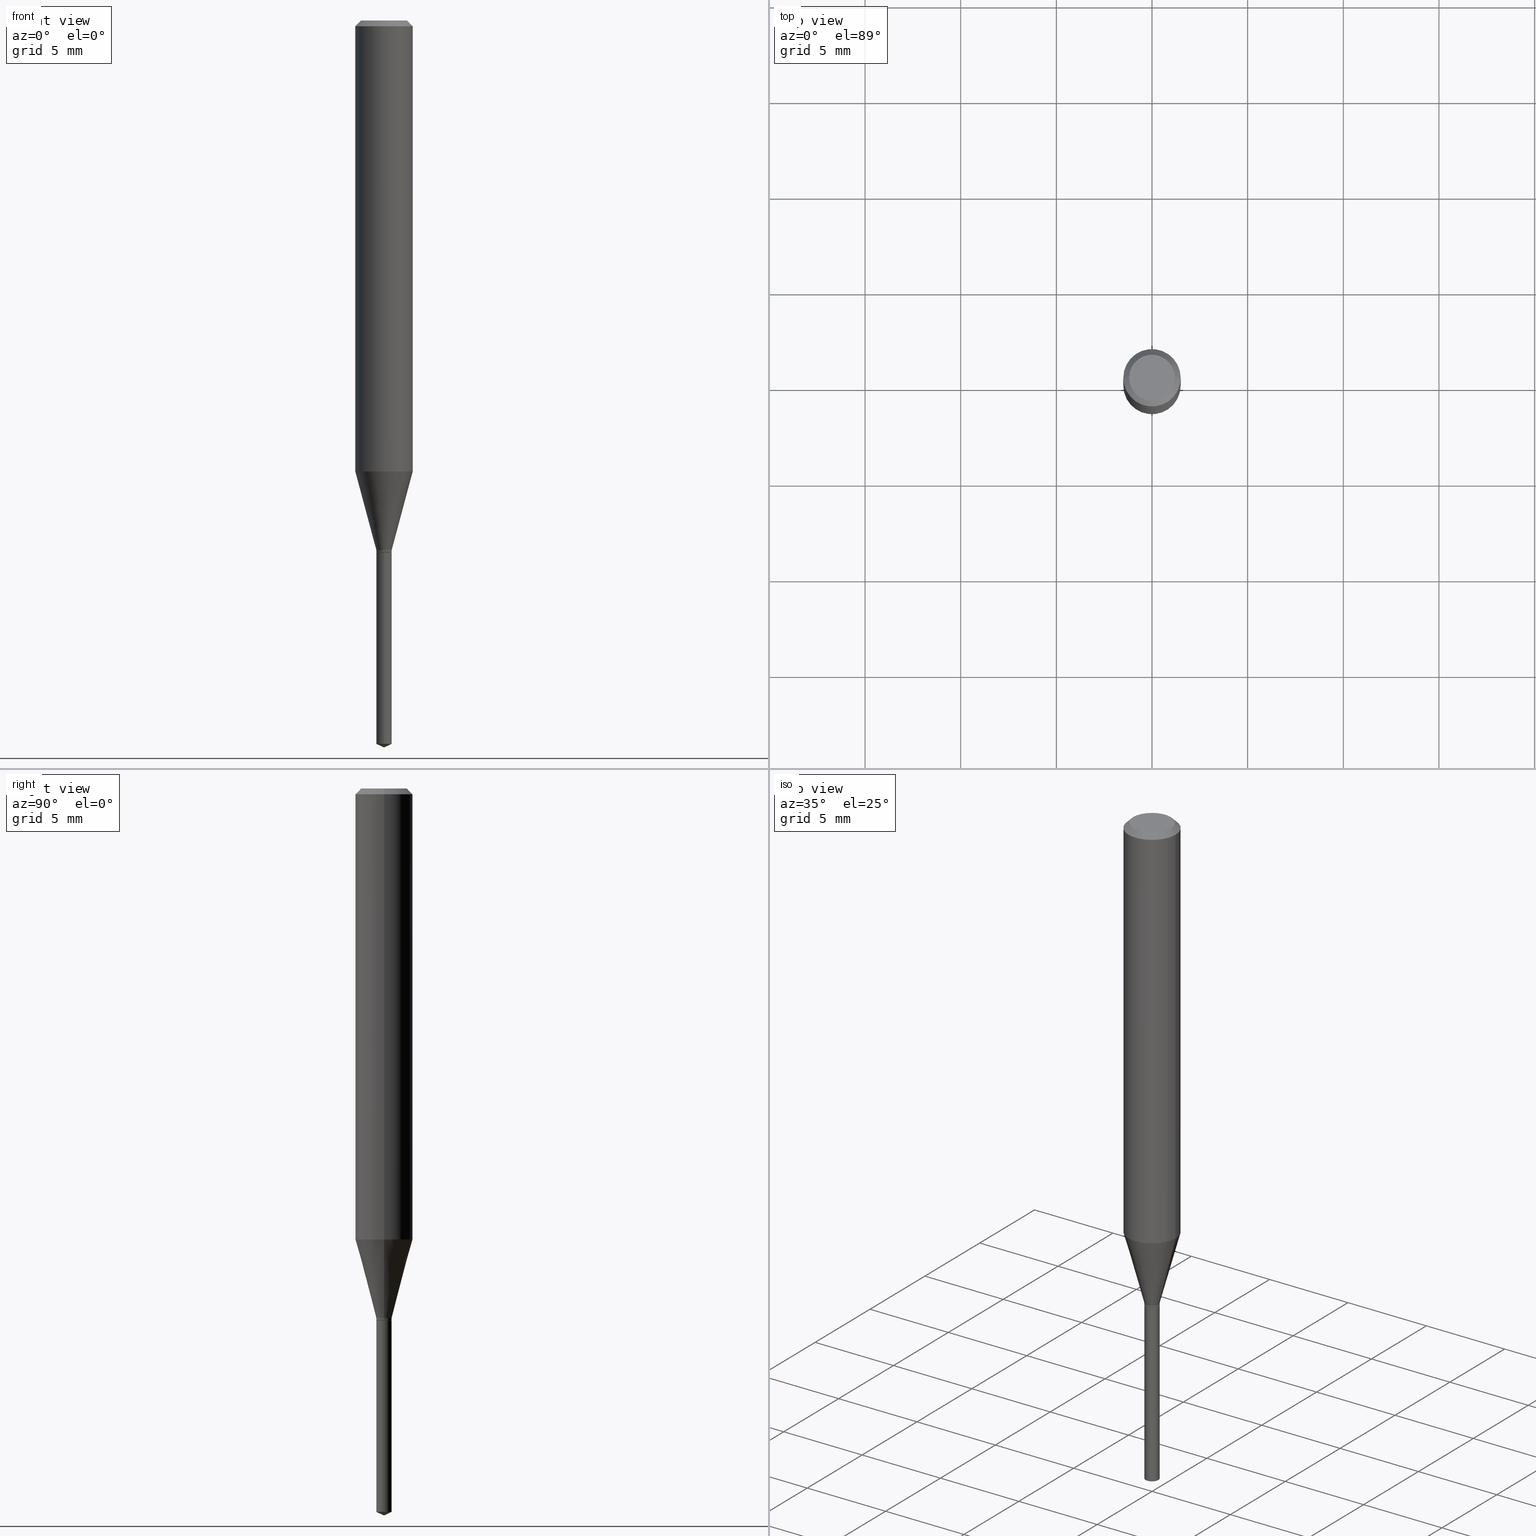
[diagram: canonical four-view strip — front | top / right | iso, engineering-drawing reading convention]
A machine part, canonical four-view strip (front | top / right | iso — engineering-drawing reading convention). The complete STEP part file that produces these views, byte-faithful:
ISO-10303-21;
HEADER;
FILE_DESCRIPTION (( 'STEP AP203' ),
    '1' );
FILE_NAME ('07456.STEP',
    '2024-04-23T21:38:40',
    ( '' ),
    ( '' ),
    'SwSTEP 2.0',
    'SolidWorks 2023',
    '' );
FILE_SCHEMA (( 'CONFIG_CONTROL_DESIGN' ));
ENDSEC;

DATA;
#1 = CARTESIAN_POINT ( 'NONE',  ( 0.05904999999999999832, -4.463468013801466955E-16, -0.01181000000000007044 ) ) ;
#2 = VECTOR ( 'NONE', #227, 39.37007874015747433 ) ;
#3 = LOCAL_TIME ( 17, 38, 40.00000000000000000, #288 ) ;
#4 = EDGE_CURVE ( 'NONE', #140, #334, #54, .T. ) ;
#5 = ORIENTED_EDGE ( 'NONE', *, *, #357, .T. ) ;
#6 = CARTESIAN_POINT ( 'NONE',  ( 2.665071904980561815E-29, -3.805016363071259851E-15, -1.089799999999999880 ) ) ;
#7 = DIRECTION ( 'NONE',  ( 1.000000000000000000, -6.982962677686266711E-15, 4.876176775795935793E-29 ) ) ;
#8 = LINE ( 'NONE', #13, #365 ) ;
#9 = LINE ( 'NONE', #158, #474 ) ;
#10 = PRODUCT_RELATED_PRODUCT_CATEGORY ( 'detail', '', ( #29 ) ) ;
#11 = FACE_OUTER_BOUND ( 'NONE', #443, .T. ) ;
#12 = AXIS2_PLACEMENT_3D ( 'NONE', #336, #126, #454 ) ;
#13 = CARTESIAN_POINT ( 'NONE',  ( -0.05904999999999999832, 3.711095515056362547E-16, -0.01181000000000007044 ) ) ;
#14 = ORIENTED_EDGE ( 'NONE', *, *, #57, .T. ) ;
#15 = DIRECTION ( 'NONE',  ( -6.982962677686265922E-15, -1.000000000000000000, 0.000000000000000000 ) ) ;
#16 = DIRECTION ( 'NONE',  ( -2.445468806185136597E-29, 3.491481338843145583E-15, 1.000000000000000000 ) ) ;
#17 = DIRECTION ( 'NONE',  ( 1.000000000000000000, 0.000000000000000000, 0.000000000000000000 ) ) ;
#18 = MECHANICAL_CONTEXT ( 'NONE', #349, 'mechanical' ) ;
#19 = EDGE_CURVE ( 'NONE', #382, #33, #322, .T. ) ;
#20 = CIRCLE ( 'NONE', #189, 0.04724000000000000421 ) ;
#21 = DIRECTION ( 'NONE',  ( -2.445470214571802116E-29, 3.491479321953280158E-15, 1.000000000000000000 ) ) ;
#22 = ORIENTED_EDGE ( 'NONE', *, *, #458, .F. ) ;
#23 = APPROVAL_DATE_TIME ( #60, #378 ) ;
#24 = ORIENTED_EDGE ( 'NONE', *, *, #318, .T. ) ;
#25 =( NAMED_UNIT ( * ) SI_UNIT ( $, .STERADIAN. ) SOLID_ANGLE_UNIT ( ) );
#26 = CC_DESIGN_DATE_AND_TIME_ASSIGNMENT ( #216, #73, ( #67 ) ) ;
#27 = ORIENTED_EDGE ( 'NONE', *, *, #438, .F. ) ;
#28 = AXIS2_PLACEMENT_3D ( 'NONE', #6, #302, #162 ) ;
#29 = PRODUCT ( '07456', '07456', '', ( #18 ) ) ;
#30 = ORIENTED_EDGE ( 'NONE', *, *, #100, .T. ) ;
#31 = DIRECTION ( 'NONE',  ( 6.982962677686265922E-15, 1.000000000000000000, -3.491479321953280158E-15 ) ) ;
#32 = APPROVAL_ROLE ( '' ) ;
#33 = VERTEX_POINT ( 'NONE', #413 ) ;
#34 = LINE ( 'NONE', #471, #119 ) ;
#35 = APPROVAL_STATUS ( 'not_yet_approved' ) ;
#36 = CC_DESIGN_SECURITY_CLASSIFICATION ( #67, ( #475 ) ) ;
#37 = ORIENTED_EDGE ( 'NONE', *, *, #4, .F. ) ;
#38 = ADVANCED_FACE ( 'NONE', ( #237 ), #47, .T. ) ;
#39 = ORIENTED_EDGE ( 'NONE', *, *, #284, .T. ) ;
#40 = DIRECTION ( 'NONE',  ( 2.445468806185136597E-29, -3.491481338843145583E-15, -1.000000000000000000 ) ) ;
#41 = CARTESIAN_POINT ( 'NONE',  ( 0.000000000000000000, 0.000000000000000000, 0.000000000000000000 ) ) ;
#42 = AXIS2_PLACEMENT_3D ( 'NONE', #326, #131, #173 ) ;
#43 = FACE_OUTER_BOUND ( 'NONE', #487, .T. ) ;
#44 = DIRECTION ( 'NONE',  ( 1.000000000000000000, -6.982962677686252511E-15, 0.000000000000000000 ) ) ;
#45 = APPROVAL ( #65, 'UNSPECIFIED' ) ;
#46 = DIRECTION ( 'NONE',  ( -2.445468806185136597E-29, 3.491481338843145583E-15, 1.000000000000000000 ) ) ;
#47 = CYLINDRICAL_SURFACE ( 'NONE', #78, 0.05905000000000005383 ) ;
#48 = DIRECTION ( 'NONE',  ( 0.7071067811864253372, -2.468850131080976739E-15, 0.7071067811866698083 ) ) ;
#49 = ORIENTED_EDGE ( 'NONE', *, *, #345, .T. ) ;
#50 = CARTESIAN_POINT ( 'NONE',  ( 2.888098660104663766E-31, -4.123439461173779647E-17, -0.01181000000000007044 ) ) ;
#51 = DIRECTION ( 'NONE',  ( 1.000000000000000000, -6.982962677686268288E-15, 0.000000000000000000 ) ) ;
#52 = AXIS2_PLACEMENT_3D ( 'NONE', #362, #359, #31 ) ;
#53 = CIRCLE ( 'NONE', #402, 0.04724000000000000421 ) ;
#54 = LINE ( 'NONE', #267, #364 ) ;
#55 =( NAMED_UNIT ( * ) PLANE_ANGLE_UNIT ( ) SI_UNIT ( $, .RADIAN. ) );
#56 = LINE ( 'NONE', #317, #282 ) ;
#57 = EDGE_CURVE ( 'NONE', #461, #122, #423, .T. ) ;
#58 = APPROVAL_ROLE ( '' ) ;
#59 = ADVANCED_FACE ( 'NONE', ( #221 ), #234, .T. ) ;
#60 = DATE_AND_TIME ( #397, #439 ) ;
#61 = DESIGN_CONTEXT ( 'detailed design', #224, 'design' ) ;
#62 = ORIENTED_EDGE ( 'NONE', *, *, #63, .F. ) ;
#63 = EDGE_CURVE ( 'NONE', #122, #139, #372, .T. ) ;
#64 = DIRECTION ( 'NONE',  ( -6.982962677686265922E-15, -1.000000000000000000, 0.000000000000000000 ) ) ;
#65 = APPROVAL_STATUS ( 'not_yet_approved' ) ;
#66 = PERSON_AND_ORGANIZATION_ROLE ( 'design_supplier' ) ;
#67 = SECURITY_CLASSIFICATION ( '', '', #220 ) ;
#68 = PERSON_AND_ORGANIZATION ( #91, #171 ) ;
#69 = EDGE_CURVE ( 'NONE', #445, #70, #9, .T. ) ;
#70 = VERTEX_POINT ( 'NONE', #193 ) ;
#71 = ORIENTED_EDGE ( 'NONE', *, *, #188, .F. ) ;
#72 = AXIS2_PLACEMENT_3D ( 'NONE', #276, #384, #44 ) ;
#73 = DATE_TIME_ROLE ( 'classification_date' ) ;
#74 = ORIENTED_EDGE ( 'NONE', *, *, #113, .F. ) ;
#75 = CC_DESIGN_DATE_AND_TIME_ASSIGNMENT ( #281, #250, ( #192 ) ) ;
#76 = EDGE_LOOP ( 'NONE', ( #361, #271, #174, #37 ) ) ;
#77 = DIRECTION ( 'NONE',  ( -6.982962677686265922E-15, -1.000000000000000000, 0.000000000000000000 ) ) ;
#78 = AXIS2_PLACEMENT_3D ( 'NONE', #128, #87, #197 ) ;
#79 = FACE_OUTER_BOUND ( 'NONE', #226, .T. ) ;
#80 = CC_DESIGN_APPROVAL ( #352, ( #67 ) ) ;
#81 = AXIS2_PLACEMENT_3D ( 'NONE', #209, #350, #286 ) ;
#82 = ADVANCED_FACE ( 'NONE', ( #199 ), #212, .T. ) ;
#83 = DIRECTION ( 'NONE',  ( 1.000000000000000000, -6.982962677686266711E-15, 0.000000000000000000 ) ) ;
#84 = DIRECTION ( 'NONE',  ( -2.445470214571802116E-29, 3.491479321953280158E-15, 1.000000000000000000 ) ) ;
#85 = CARTESIAN_POINT ( 'NONE',  ( 4.132873053354867254E-48, -5.900647395337818946E-34, -1.690012582823346072E-19 ) ) ;
#86 = ORIENTED_EDGE ( 'NONE', *, *, #275, .T. ) ;
#87 = DIRECTION ( 'NONE',  ( -2.445468806185136597E-29, 3.491481338843145583E-15, 1.000000000000000000 ) ) ;
#88 = DIRECTION ( 'NONE',  ( 1.000000000000000000, -6.982962677686265922E-15, 4.876176775795935793E-29 ) ) ;
#89 = CARTESIAN_POINT ( 'NONE',  ( 8.265746106709734507E-48, -1.180129479067563789E-33, -3.380025165646692144E-19 ) ) ;
#90 = ADVANCED_FACE ( 'NONE', ( #310 ), #401, .T. ) ;
#91 = PERSON ( 'UNSPECIFIED', 'UNSPECIFIED', 'UNSPECIFIED', ('UNSPECIFIED'), ('UNSPECIFIED'), ('UNSPECIFIED') ) ;
#92 = CARTESIAN_POINT ( 'NONE',  ( 0.01525000000000000140, -3.927916506198538435E-15, -1.094500000000000028 ) ) ;
#93 = AXIS2_PLACEMENT_3D ( 'NONE', #300, #16, #380 ) ;
#94 = CC_DESIGN_APPROVAL ( #378, ( #192 ) ) ;
#95 = ORIENTED_EDGE ( 'NONE', *, *, #318, .F. ) ;
#96 = COORDINATED_UNIVERSAL_TIME_OFFSET ( 5, 0, .BEHIND. ) ;
#97 = DIRECTION ( 'NONE',  ( 1.000000000000000000, -6.982962677686255667E-15, 0.000000000000000000 ) ) ;
#98 = PERSON_AND_ORGANIZATION_ROLE ( 'design_owner' ) ;
#99 = CARTESIAN_POINT ( 'NONE',  ( 2.676565608369632355E-29, -3.821426325363822773E-15, -1.094500000000000028 ) ) ;
#100 = EDGE_CURVE ( 'NONE', #260, #480, #329, .T. ) ;
#101 = APPROVAL_PERSON_ORGANIZATION ( #149, #352, #444 ) ;
#102 = PLANE ( 'NONE',  #52 ) ;
#103 = FACE_OUTER_BOUND ( 'NONE', #76, .T. ) ;
#104 = ORIENTED_EDGE ( 'NONE', *, *, #345, .F. ) ;
#105 = PERSON_AND_ORGANIZATION ( #91, #171 ) ;
#106 = CC_DESIGN_PERSON_AND_ORGANIZATION_ASSIGNMENT ( #68, #433, ( #475 ) ) ;
#107 = PRODUCT_DEFINITION_SHAPE ( 'NONE', 'NONE',  #192 ) ;
#108 = ORIENTED_EDGE ( 'NONE', *, *, #481, .F. ) ;
#109 = EDGE_LOOP ( 'NONE', ( #24, #114, #104, #347 ) ) ;
#110 = CALENDAR_DATE ( 2024, 23, 4 ) ;
#111 = DIRECTION ( 'NONE',  ( -2.445470214571802116E-29, 3.491479321953280158E-15, 1.000000000000000000 ) ) ;
#112 = DIRECTION ( 'NONE',  ( -6.982962677686268288E-15, -1.000000000000000000, 3.520397390770387606E-15 ) ) ;
#113 = EDGE_CURVE ( 'NONE', #437, #260, #407, .T. ) ;
#114 = ORIENTED_EDGE ( 'NONE', *, *, #113, .T. ) ;
#115 = AXIS2_PLACEMENT_3D ( 'NONE', #414, #84, #381 ) ;
#116 = CARTESIAN_POINT ( 'NONE',  ( 3.640706068092362189E-29, -5.197961790208923730E-15, -1.488755654384058769 ) ) ;
#117 = DIRECTION ( 'NONE',  ( -6.982962677686265922E-15, -1.000000000000000000, 0.000000000000000000 ) ) ;
#118 = CARTESIAN_POINT ( 'NONE',  ( 2.665071904980561815E-29, -3.805016363071259851E-15, -1.089799999999999880 ) ) ;
#119 = VECTOR ( 'NONE', #214, 39.37007874015747433 ) ;
#120 = PLANE ( 'NONE',  #264 ) ;
#121 = DIRECTION ( 'NONE',  ( -2.445468806185136597E-29, 3.491481338843145583E-15, 1.000000000000000000 ) ) ;
#122 = VERTEX_POINT ( 'NONE', #253 ) ;
#123 = LINE ( 'NONE', #308, #468 ) ;
#124 = CARTESIAN_POINT ( 'NONE',  ( 2.888098660104663766E-31, -4.123439461173779647E-17, -0.01181000000000007044 ) ) ;
#125 = DIRECTION ( 'NONE',  ( -2.445470214571802116E-29, 3.491479321953280158E-15, 1.000000000000000000 ) ) ;
#126 = DIRECTION ( 'NONE',  ( -2.445468806185136597E-29, 3.491481338843145583E-15, 1.000000000000000000 ) ) ;
#127 = ORIENTED_EDGE ( 'NONE', *, *, #142, .F. ) ;
#128 = CARTESIAN_POINT ( 'NONE',  ( 0.000000000000000000, 0.000000000000000000, 0.000000000000000000 ) ) ;
#129 = CARTESIAN_POINT ( 'NONE',  ( -9.261968845786000133E-28, 1.322362114038720264E-13, 37.87397874015748300 ) ) ;
#130 = DIRECTION ( 'NONE',  ( 1.000000000000000000, -6.982962677686266711E-15, 4.876185090822587894E-29 ) ) ;
#131 = DIRECTION ( 'NONE',  ( -2.445468806185136597E-29, 3.491481338843145583E-15, 1.000000000000000000 ) ) ;
#132 = CARTESIAN_POINT ( 'NONE',  ( 0.01575000000000000011, -1.099816621735586938E-16, 7.679978421878599434E-31 ) ) ;
#133 = APPLICATION_PROTOCOL_DEFINITION ( 'international standard', 'config_control_design', 1994, #349 ) ;
#134 = ADVANCED_FACE ( 'NONE', ( #430 ), #102, .F. ) ;
#135 = CARTESIAN_POINT ( 'NONE',  ( 3.640706068092362189E-29, -5.197961790208923730E-15, -1.488755654384058769 ) ) ;
#136 = CALENDAR_DATE ( 2024, 23, 4 ) ;
#137 = CIRCLE ( 'NONE', #427, 0.01575000000000000011 ) ;
#138 = AXIS2_PLACEMENT_3D ( 'NONE', #118, #262, #370 ) ;
#139 = VERTEX_POINT ( 'NONE', #479 ) ;
#140 = VERTEX_POINT ( 'NONE', #441 ) ;
#141 = ORIENTED_EDGE ( 'NONE', *, *, #217, .F. ) ;
#142 = EDGE_CURVE ( 'NONE', #33, #461, #34, .T. ) ;
#143 = APPROVAL_DATE_TIME ( #368, #352 ) ;
#144 = DIRECTION ( 'NONE',  ( -2.445470214571802116E-29, 3.491479321953280158E-15, 1.000000000000000000 ) ) ;
#145 = AXIS2_PLACEMENT_3D ( 'NONE', #333, #207, #316 ) ;
#146 = CIRCLE ( 'NONE', #243, 0.01525000000000000140 ) ;
#147 = ORIENTED_EDGE ( 'NONE', *, *, #166, .T. ) ;
#148 = ORIENTED_EDGE ( 'NONE', *, *, #312, .T. ) ;
#149 = PERSON_AND_ORGANIZATION ( #91, #171 ) ;
#150 = EDGE_CURVE ( 'NONE', #140, #70, #137, .T. ) ;
#151 = ORIENTED_EDGE ( 'NONE', *, *, #481, .T. ) ;
#152 = ORIENTED_EDGE ( 'NONE', *, *, #188, .T. ) ;
#153 = AXIS2_PLACEMENT_3D ( 'NONE', #232, #46, #83 ) ;
#154 = CARTESIAN_POINT ( 'NONE',  ( -0.01525000000000000140, -3.710419330986296395E-15, -1.094500000000000028 ) ) ;
#155 = ADVANCED_FACE ( 'NONE', ( #354 ), #455, .T. ) ;
#156 = CARTESIAN_POINT ( 'NONE',  ( 2.675342873966538993E-29, -3.819680584694400481E-15, -1.093999999999999861 ) ) ;
#157 = LINE ( 'NONE', #1, #298 ) ;
#158 = CARTESIAN_POINT ( 'NONE',  ( 3.658668015054778287E-29, -5.223602213574301462E-15, -1.496099999999999985 ) ) ;
#159 = AXIS2_PLACEMENT_3D ( 'NONE', #124, #419, #339 ) ;
#160 = FACE_OUTER_BOUND ( 'NONE', #476, .T. ) ;
#161 = AXIS2_PLACEMENT_3D ( 'NONE', #156, #457, #453 ) ;
#162 = DIRECTION ( 'NONE',  ( 1.000000000000000000, -6.982962677686255667E-15, 0.000000000000000000 ) ) ;
#163 = ORIENTED_EDGE ( 'NONE', *, *, #19, .T. ) ;
#164 = ORIENTED_EDGE ( 'NONE', *, *, #346, .F. ) ;
#165 = CYLINDRICAL_SURFACE ( 'NONE', #327, 0.05905000000000005383 ) ;
#166 = EDGE_CURVE ( 'NONE', #480, #33, #296, .T. ) ;
#167 = DIRECTION ( 'NONE',  ( -2.445470214571802396E-29, 3.491479321953280158E-15, 1.000000000000000000 ) ) ;
#168 = DIRECTION ( 'NONE',  ( 0.000000000000000000, 0.000000000000000000, 1.000000000000000000 ) ) ;
#169 = PERSON_AND_ORGANIZATION ( #91, #171 ) ;
#170 = VECTOR ( 'NONE', #404, 39.37007874015748143 ) ;
#171 = ORGANIZATION ( 'UNSPECIFIED', 'UNSPECIFIED', '' ) ;
#172 = EDGE_CURVE ( 'NONE', #70, #181, #56, .T. ) ;
#173 = DIRECTION ( 'NONE',  ( 1.000000000000000000, -6.982962677686268288E-15, 0.000000000000000000 ) ) ;
#174 = ORIENTED_EDGE ( 'NONE', *, *, #230, .F. ) ;
#175 = PERSON_AND_ORGANIZATION ( #91, #171 ) ;
#176 = EDGE_LOOP ( 'NONE', ( #421, #462, #5, #325 ) ) ;
#177 = ORIENTED_EDGE ( 'NONE', *, *, #312, .F. ) ;
#178 = CARTESIAN_POINT ( 'NONE',  ( -9.261968845786000133E-28, 1.322362114038720264E-13, 37.87397874015748300 ) ) ;
#179 = EDGE_CURVE ( 'NONE', #266, #241, #20, .T. ) ;
#180 = CIRCLE ( 'NONE', #93, 0.05904999999999999832 ) ;
#181 = VERTEX_POINT ( 'NONE', #393 ) ;
#182 = COORDINATED_UNIVERSAL_TIME_OFFSET ( 5, 0, .BEHIND. ) ;
#183 = CIRCLE ( 'NONE', #283, 0.01525000000000000140 ) ;
#184 = ADVANCED_FACE ( 'NONE', ( #321 ), #247, .T. ) ;
#185 = ORIENTED_EDGE ( 'NONE', *, *, #150, .F. ) ;
#186 = ORIENTED_EDGE ( 'NONE', *, *, #470, .F. ) ;
#187 = DIRECTION ( 'NONE',  ( 1.000000000000000000, -6.982962677686265922E-15, 4.876176775795936353E-29 ) ) ;
#188 = EDGE_CURVE ( 'NONE', #461, #285, #202, .T. ) ;
#189 = AXIS2_PLACEMENT_3D ( 'NONE', #89, #466, #130 ) ;
#190 = CIRCLE ( 'NONE', #138, 0.01575000000000000011 ) ;
#191 = DIRECTION ( 'NONE',  ( -2.445468806185136597E-29, 3.491481338843145583E-15, 1.000000000000000000 ) ) ;
#192 = PRODUCT_DEFINITION ( 'UNKNOWN', '', #475, #61 ) ;
#193 = CARTESIAN_POINT ( 'NONE',  ( 1.119104808822521909E-16, 0.01574999999999480288, -1.488755654384058769 ) ) ;
#194 = FACE_OUTER_BOUND ( 'NONE', #373, .T. ) ;
#195 = CYLINDRICAL_SURFACE ( 'NONE', #115, 0.01575000000000000011 ) ;
#196 = ORIENTED_EDGE ( 'NONE', *, *, #100, .F. ) ;
#197 = DIRECTION ( 'NONE',  ( 1.000000000000000000, -6.982962677686266711E-15, 4.876176775795935793E-29 ) ) ;
#198 = CARTESIAN_POINT ( 'NONE',  ( 3.658664905062460986E-29, -5.223606628546217219E-15, -1.496099999999999985 ) ) ;
#199 = FACE_OUTER_BOUND ( 'NONE', #375, .T. ) ;
#200 = EDGE_LOOP ( 'NONE', ( #49, #30, #164, #246 ) ) ;
#201 = ADVANCED_FACE ( 'NONE', ( #450 ), #415, .F. ) ;
#202 = CIRCLE ( 'NONE', #289, 0.05905000000000010241 ) ;
#203 = DIRECTION ( 'NONE',  ( 1.000000000000000000, -6.982962677686252511E-15, 0.000000000000000000 ) ) ;
#204 = APPROVAL_PERSON_ORGANIZATION ( #245, #378, #58 ) ;
#205 = DIRECTION ( 'NONE',  ( -1.000000000000000000, 6.982962677686265922E-15, -4.876176775795935793E-29 ) ) ;
#206 = CARTESIAN_POINT ( 'NONE',  ( 0.000000000000000000, 0.000000000000000000, 0.000000000000000000 ) ) ;
#207 = DIRECTION ( 'NONE',  ( -2.445468806185136597E-29, 3.491481338843145583E-15, 1.000000000000000000 ) ) ;
#208 = ORIENTED_EDGE ( 'NONE', *, *, #172, .F. ) ;
#209 = CARTESIAN_POINT ( 'NONE',  ( 2.675342873966538993E-29, -3.819680584694400481E-15, -1.093999999999999861 ) ) ;
#210 = DIRECTION ( 'NONE',  ( -2.445468806185136597E-29, 3.491481338843145583E-15, 1.000000000000000000 ) ) ;
#211 = DIRECTION ( 'NONE',  ( -6.982962677686268288E-15, -1.000000000000000000, 3.520397390770387606E-15 ) ) ;
#212 = CONICAL_SURFACE ( 'NONE', #28, 0.01575000000000000011, 0.2617993877991500740 ) ;
#213 = DIRECTION ( 'NONE',  ( -2.445470214571802116E-29, 3.491479321953280158E-15, 1.000000000000000000 ) ) ;
#214 = DIRECTION ( 'NONE',  ( 0.2588190451025213501, 1.565188264969621968E-15, 0.9659258262890682012 ) ) ;
#215 = DIRECTION ( 'NONE',  ( -2.445468806185136597E-29, 3.491481338843145583E-15, 1.000000000000000000 ) ) ;
#216 = DATE_AND_TIME ( #442, #351 ) ;
#217 = EDGE_CURVE ( 'NONE', #139, #122, #180, .T. ) ;
#218 = CARTESIAN_POINT ( 'NONE',  ( 2.676565608369631794E-29, -3.821426325363822773E-15, -1.094499999999999806 ) ) ;
#219 =( GEOMETRIC_REPRESENTATION_CONTEXT ( 3 ) GLOBAL_UNCERTAINTY_ASSIGNED_CONTEXT ( ( #309 ) ) GLOBAL_UNIT_ASSIGNED_CONTEXT ( ( #390, #55, #25 ) ) REPRESENTATION_CONTEXT ( 'NONE', 'WORKASPACE' ) );
#220 = SECURITY_CLASSIFICATION_LEVEL ( 'unclassified' ) ;
#221 = FACE_OUTER_BOUND ( 'NONE', #279, .T. ) ;
#222 = CC_DESIGN_PERSON_AND_ORGANIZATION_ASSIGNMENT ( #169, #98, ( #29 ) ) ;
#223 = ORIENTED_EDGE ( 'NONE', *, *, #142, .T. ) ;
#224 = APPLICATION_CONTEXT ( 'configuration controlled 3d designs of mechanical parts and assemblies' ) ;
#225 = AXIS2_PLACEMENT_3D ( 'NONE', #178, #144, #112 ) ;
#226 = EDGE_LOOP ( 'NONE', ( #320, #366, #71, #127 ) ) ;
#227 = DIRECTION ( 'NONE',  ( -0.2588190451025213501, 5.211531920934551042E-15, 0.9659258262890682012 ) ) ;
#228 = CIRCLE ( 'NONE', #81, 0.01575000000000000011 ) ;
#229 = SHAPE_DEFINITION_REPRESENTATION ( #107, #489 ) ;
#230 = EDGE_CURVE ( 'NONE', #334, #181, #446, .T. ) ;
#231 = FACE_OUTER_BOUND ( 'NONE', #200, .T. ) ;
#232 = CARTESIAN_POINT ( 'NONE',  ( 2.888098660104663766E-31, -4.123439461173779647E-17, -0.01181000000000007044 ) ) ;
#233 = EDGE_LOOP ( 'NONE', ( #434, #254 ) ) ;
#234 = CONICAL_SURFACE ( 'NONE', #145, 0.01525000000000000140, 0.7853981633972754173 ) ;
#235 = CIRCLE ( 'NONE', #42, 0.05905000000000010241 ) ;
#236 = DIRECTION ( 'NONE',  ( 0.7071067811865453523, -7.319954787623248157E-15, -0.7071067811865496822 ) ) ;
#237 = FACE_OUTER_BOUND ( 'NONE', #473, .T. ) ;
#238 = DIRECTION ( 'NONE',  ( -0.7071067811865453523, 2.468850131082234184E-15, -0.7071067811865496822 ) ) ;
#239 = ADVANCED_FACE ( 'NONE', ( #194 ), #389, .T. ) ;
#240 = FACE_OUTER_BOUND ( 'NONE', #297, .T. ) ;
#241 = VERTEX_POINT ( 'NONE', #376 ) ;
#242 = CARTESIAN_POINT ( 'NONE',  ( 2.676565608369631794E-29, -3.821426325363822773E-15, -1.094499999999999806 ) ) ;
#243 = AXIS2_PLACEMENT_3D ( 'NONE', #344, #304, #203 ) ;
#244 = EDGE_CURVE ( 'NONE', #480, #285, #277, .T. ) ;
#245 = PERSON_AND_ORGANIZATION ( #91, #171 ) ;
#246 = ORIENTED_EDGE ( 'NONE', *, *, #19, .F. ) ;
#247 = CONICAL_SURFACE ( 'NONE', #72, 0.01525000000000000140, 0.7853981633972754173 ) ;
#248 = AXIS2_PLACEMENT_3D ( 'NONE', #116, #409, #77 ) ;
#249 = MANIFOLD_SOLID_BREP ( 'Body-Move/Copy2[1]', #251 ) ;
#250 = DATE_TIME_ROLE ( 'creation_date' ) ;
#251 = CLOSED_SHELL ( 'NONE', ( #478, #451, #155, #448, #134 ) ) ;
#252 = AXIS2_PLACEMENT_3D ( 'NONE', #50, #40, #342 ) ;
#253 = CARTESIAN_POINT ( 'NONE',  ( 0.05904999999999999832, -4.535783407291118600E-16, -0.01181000000000007044 ) ) ;
#254 = ORIENTED_EDGE ( 'NONE', *, *, #259, .T. ) ;
#255 = ORIENTED_EDGE ( 'NONE', *, *, #357, .F. ) ;
#256 = DIMENSIONAL_EXPONENTS ( 1.000000000000000000, 0.000000000000000000, 0.000000000000000000, 0.000000000000000000, 0.000000000000000000, 0.000000000000000000, 0.000000000000000000 ) ;
#257 = AXIS2_PLACEMENT_3D ( 'NONE', #269, #210, #97 ) ;
#258 = CIRCLE ( 'NONE', #161, 0.01575000000000000011 ) ;
#259 = EDGE_CURVE ( 'NONE', #181, #334, #467, .T. ) ;
#260 = VERTEX_POINT ( 'NONE', #330 ) ;
#261 = CYLINDRICAL_SURFACE ( 'NONE', #338, 0.01575000000000000011 ) ;
#262 = DIRECTION ( 'NONE',  ( -2.445468806185136597E-29, 3.491481338843145583E-15, 1.000000000000000000 ) ) ;
#263 = VECTOR ( 'NONE', #405, 39.37007874015748143 ) ;
#264 = AXIS2_PLACEMENT_3D ( 'NONE', #265, #343, #88 ) ;
#265 = CARTESIAN_POINT ( 'NONE',  ( -4.169044778437526627E-29, -1.362473002721803943E-14, -1.094500000000000028 ) ) ;
#266 = VERTEX_POINT ( 'NONE', #426 ) ;
#267 = CARTESIAN_POINT ( 'NONE',  ( -1.099816621735319341E-16, -0.01575000000000382344, -1.094499999999999806 ) ) ;
#268 = CARTESIAN_POINT ( 'NONE',  ( -0.05905000000000011628, -2.821225174619474378E-15, -0.9282022000322674993 ) ) ;
#269 = CARTESIAN_POINT ( 'NONE',  ( 2.665071904980561815E-29, -3.805016363071259851E-15, -1.089799999999999880 ) ) ;
#270 = CARTESIAN_POINT ( 'NONE',  ( 0.01575000000000000011, -3.929662246867959150E-15, -1.093999999999999861 ) ) ;
#271 = ORIENTED_EDGE ( 'NONE', *, *, #172, .T. ) ;
#272 = AXIS2_PLACEMENT_3D ( 'NONE', #206, #340, #452 ) ;
#273 = APPLICATION_PROTOCOL_DEFINITION ( 'international standard', 'config_control_design', 1994, #224 ) ;
#274 = CC_DESIGN_APPROVAL ( #45, ( #475 ) ) ;
#275 = EDGE_CURVE ( 'NONE', #398, #382, #435, .T. ) ;
#276 = CARTESIAN_POINT ( 'NONE',  ( 2.676565608369632355E-29, -3.821426325363822773E-15, -1.094500000000000028 ) ) ;
#277 = LINE ( 'NONE', #328, #2 ) ;
#278 = CARTESIAN_POINT ( 'NONE',  ( 0.05905000000000011628, -3.653144606203188791E-15, -0.9282022000322674993 ) ) ;
#279 = EDGE_LOOP ( 'NONE', ( #74, #151, #86, #22 ) ) ;
#280 = DIRECTION ( 'NONE',  ( -2.445470214571802116E-29, 3.491479321953280158E-15, 1.000000000000000000 ) ) ;
#281 = DATE_AND_TIME ( #136, #396 ) ;
#282 = VECTOR ( 'NONE', #459, 39.37007874015748143 ) ;
#283 = AXIS2_PLACEMENT_3D ( 'NONE', #99, #215, #348 ) ;
#284 = EDGE_CURVE ( 'NONE', #241, #266, #53, .T. ) ;
#285 = VERTEX_POINT ( 'NONE', #268 ) ;
#286 = DIRECTION ( 'NONE',  ( 1.000000000000000000, -6.982962677686255667E-15, 0.000000000000000000 ) ) ;
#287 = COORDINATED_UNIVERSAL_TIME_OFFSET ( 5, 0, .BEHIND. ) ;
#288 = COORDINATED_UNIVERSAL_TIME_OFFSET ( 5, 0, .BEHIND. ) ;
#289 = AXIS2_PLACEMENT_3D ( 'NONE', #305, #121, #51 ) ;
#290 = APPROVAL_PERSON_ORGANIZATION ( #399, #45, #32 ) ;
#291 = ORIENTED_EDGE ( 'NONE', *, *, #438, .T. ) ;
#292 = CARTESIAN_POINT ( 'NONE',  ( -0.01575000000000000011, 1.119104808822157801E-16, -7.747322767151476634E-31 ) ) ;
#293 = PERSON_AND_ORGANIZATION ( #91, #171 ) ;
#294 = ADVANCED_FACE ( 'NONE', ( #231 ), #261, .T. ) ;
#295 = DIRECTION ( 'NONE',  ( -0.7071067811864253372, 7.493145998869912398E-15, 0.7071067811866698083 ) ) ;
#296 = CIRCLE ( 'NONE', #257, 0.01575000000000000011 ) ;
#297 = EDGE_LOOP ( 'NONE', ( #313, #490, #485, #255 ) ) ;
#298 = VECTOR ( 'NONE', #236, 39.37007874015748143 ) ;
#299 = CARTESIAN_POINT ( 'NONE',  ( 0.01525000000000000140, -3.927916506198538435E-15, -1.094500000000000028 ) ) ;
#300 = CARTESIAN_POINT ( 'NONE',  ( 2.888098660104663766E-31, -4.123439461173779647E-17, -0.01181000000000007044 ) ) ;
#301 = DIRECTION ( 'NONE',  ( 1.000000000000000000, -6.982962677686266711E-15, 4.876185090822587894E-29 ) ) ;
#302 = DIRECTION ( 'NONE',  ( -2.445468806185136597E-29, 3.491481338843145583E-15, 1.000000000000000000 ) ) ;
#303 = ADVANCED_FACE ( 'NONE', ( #160 ), #165, .T. ) ;
#304 = DIRECTION ( 'NONE',  ( -2.445468806185136597E-29, 3.491481338843145583E-15, 1.000000000000000000 ) ) ;
#305 = CARTESIAN_POINT ( 'NONE',  ( 2.269889526011326603E-29, -3.240800660085814660E-15, -0.9282022000322674993 ) ) ;
#306 = CLOSED_SHELL ( 'NONE', ( #184, #400, #38, #367, #294, #239, #82, #303, #90, #201, #395, #59 ) ) ;
#307 = AXIS2_PLACEMENT_3D ( 'NONE', #242, #21, #424 ) ;
#308 = CARTESIAN_POINT ( 'NONE',  ( -0.05905000000000005383, 4.195754854663395423E-16, -2.904631170795524694E-30 ) ) ;
#309 = UNCERTAINTY_MEASURE_WITH_UNIT (LENGTH_MEASURE( 1.000000000000000082E-05 ), #390, 'distance_accuracy_value', 'NONE');
#310 = FACE_OUTER_BOUND ( 'NONE', #176, .T. ) ;
#311 = LINE ( 'NONE', #198, #412 ) ;
#312 = EDGE_CURVE ( 'NONE', #285, #139, #123, .T. ) ;
#313 = ORIENTED_EDGE ( 'NONE', *, *, #284, .F. ) ;
#314 = DIRECTION ( 'NONE',  ( -2.445468806185136877E-29, 3.491481338843145188E-15, 1.000000000000000000 ) ) ;
#315 = LENGTH_MEASURE_WITH_UNIT ( LENGTH_MEASURE( 0.02539999999999999897 ), #431 );
#316 = DIRECTION ( 'NONE',  ( 1.000000000000000000, -6.982962677686252511E-15, 0.000000000000000000 ) ) ;
#317 = CARTESIAN_POINT ( 'NONE',  ( 1.119104808822425274E-16, 0.01574999999999617678, -1.094499999999999806 ) ) ;
#318 = EDGE_CURVE ( 'NONE', #398, #437, #146, .T. ) ;
#319 = VECTOR ( 'NONE', #295, 39.37007874015748143 ) ;
#320 = ORIENTED_EDGE ( 'NONE', *, *, #346, .T. ) ;
#321 = FACE_OUTER_BOUND ( 'NONE', #109, .T. ) ;
#322 = LINE ( 'NONE', #132, #482 ) ;
#323 = PERSON_AND_ORGANIZATION_ROLE ( 'creator' ) ;
#324 = CC_DESIGN_PERSON_AND_ORGANIZATION_ASSIGNMENT ( #175, #323, ( #192 ) ) ;
#325 = ORIENTED_EDGE ( 'NONE', *, *, #217, .T. ) ;
#326 = CARTESIAN_POINT ( 'NONE',  ( 2.269889526011326603E-29, -3.240800660085814660E-15, -0.9282022000322674993 ) ) ;
#327 = AXIS2_PLACEMENT_3D ( 'NONE', #417, #191, #7 ) ;
#328 = CARTESIAN_POINT ( 'NONE',  ( -0.01575000000000000011, -3.693105882189043775E-15, -1.089799999999999880 ) ) ;
#329 = LINE ( 'NONE', #292, #263 ) ;
#330 = CARTESIAN_POINT ( 'NONE',  ( -0.01575000000000000011, -3.700437993000614090E-15, -1.093999999999999861 ) ) ;
#331 = ORIENTED_EDGE ( 'NONE', *, *, #470, .T. ) ;
#332 = ORIENTED_EDGE ( 'NONE', *, *, #358, .T. ) ;
#333 = CARTESIAN_POINT ( 'NONE',  ( 2.676565608369632355E-29, -3.821426325363822773E-15, -1.094500000000000028 ) ) ;
#334 = VERTEX_POINT ( 'NONE', #371 ) ;
#335 = APPROVAL_DATE_TIME ( #483, #45 ) ;
#336 = CARTESIAN_POINT ( 'NONE',  ( 2.665071904980561815E-29, -3.805016363071259851E-15, -1.089799999999999880 ) ) ;
#337 = ORIENTED_EDGE ( 'NONE', *, *, #259, .F. ) ;
#338 = AXIS2_PLACEMENT_3D ( 'NONE', #41, #449, #187 ) ;
#339 = DIRECTION ( 'NONE',  ( -1.000000000000000000, 6.982962677686266711E-15, 0.000000000000000000 ) ) ;
#340 = DIRECTION ( 'NONE',  ( -2.445468806185136597E-29, 3.491481338843145583E-15, 1.000000000000000000 ) ) ;
#341 = DIRECTION ( 'NONE',  ( -2.445468806185136877E-29, 3.491481338843145188E-15, 1.000000000000000000 ) ) ;
#342 = DIRECTION ( 'NONE',  ( -1.000000000000000000, 6.982962677686266711E-15, 0.000000000000000000 ) ) ;
#343 = DIRECTION ( 'NONE',  ( -2.438088387897960049E-29, 3.491481338843145188E-15, 1.000000000000000000 ) ) ;
#344 = CARTESIAN_POINT ( 'NONE',  ( 2.676565608369632355E-29, -3.821426325363822773E-15, -1.094500000000000028 ) ) ;
#345 = EDGE_CURVE ( 'NONE', #382, #260, #258, .T. ) ;
#346 = EDGE_CURVE ( 'NONE', #33, #480, #190, .T. ) ;
#347 = ORIENTED_EDGE ( 'NONE', *, *, #275, .F. ) ;
#348 = DIRECTION ( 'NONE',  ( 1.000000000000000000, -6.982962677686252511E-15, 0.000000000000000000 ) ) ;
#349 = APPLICATION_CONTEXT ( 'configuration controlled 3d designs of mechanical parts and assemblies' ) ;
#350 = DIRECTION ( 'NONE',  ( -2.445468806185136597E-29, 3.491481338843145583E-15, 1.000000000000000000 ) ) ;
#351 = LOCAL_TIME ( 17, 38, 40.00000000000000000, #287 ) ;
#352 = APPROVAL ( #35, 'UNSPECIFIED' ) ;
#353 = CARTESIAN_POINT ( 'NONE',  ( 0.05905000000000005383, -4.123439461173744271E-16, 2.879382386107502672E-30 ) ) ;
#354 = FACE_OUTER_BOUND ( 'NONE', #416, .T. ) ;
#355 = AXIS2_PLACEMENT_3D ( 'NONE', #463, #125, #117 ) ;
#356 = CIRCLE ( 'NONE', #248, 0.01575000000000000011 ) ;
#357 = EDGE_CURVE ( 'NONE', #266, #139, #8, .T. ) ;
#358 = EDGE_CURVE ( 'NONE', #445, #140, #311, .T. ) ;
#359 = DIRECTION ( 'NONE',  ( 2.445470214571801836E-29, -3.491479321953280158E-15, -1.000000000000000000 ) ) ;
#360 = PERSON_AND_ORGANIZATION_ROLE ( 'classification_officer' ) ;
#361 = ORIENTED_EDGE ( 'NONE', *, *, #150, .T. ) ;
#362 = CARTESIAN_POINT ( 'NONE',  ( 2.676565608369631794E-29, -3.821426325363822773E-15, -1.094499999999999806 ) ) ;
#363 = ORIENTED_EDGE ( 'NONE', *, *, #358, .F. ) ;
#364 = VECTOR ( 'NONE', #167, 39.37007874015748143 ) ;
#365 = VECTOR ( 'NONE', #238, 39.37007874015748143 ) ;
#366 = ORIENTED_EDGE ( 'NONE', *, *, #244, .T. ) ;
#367 = ADVANCED_FACE ( 'NONE', ( #79 ), #428, .T. ) ;
#368 = DATE_AND_TIME ( #110, #456 ) ;
#369 = ORIENTED_EDGE ( 'NONE', *, *, #69, .T. ) ;
#370 = DIRECTION ( 'NONE',  ( 1.000000000000000000, -6.982962677686255667E-15, 0.000000000000000000 ) ) ;
#371 = CARTESIAN_POINT ( 'NONE',  ( -1.099816621735319341E-16, -0.01575000000000382344, -1.094499999999999806 ) ) ;
#372 = CIRCLE ( 'NONE', #153, 0.05904999999999999832 ) ;
#373 = EDGE_LOOP ( 'NONE', ( #196, #406, #163, #440 ) ) ;
#374 = AXIS2_PLACEMENT_3D ( 'NONE', #392, #168, #17 ) ;
#375 = EDGE_LOOP ( 'NONE', ( #388, #147, #223, #186 ) ) ;
#376 = CARTESIAN_POINT ( 'NONE',  ( 0.04724000000000000421, -3.852183633974369345E-16, -3.380025165621689721E-19 ) ) ;
#377 = CARTESIAN_POINT ( 'NONE',  ( 3.658667988020872822E-29, -5.223602213574301462E-15, -1.496099999999999985 ) ) ;
#378 = APPROVAL ( #394, 'UNSPECIFIED' ) ;
#379 = ORIENTED_EDGE ( 'NONE', *, *, #179, .T. ) ;
#380 = DIRECTION ( 'NONE',  ( 1.000000000000000000, -6.982962677686266711E-15, 0.000000000000000000 ) ) ;
#381 = DIRECTION ( 'NONE',  ( -6.982962677686265922E-15, -1.000000000000000000, 0.000000000000000000 ) ) ;
#382 = VERTEX_POINT ( 'NONE', #270 ) ;
#383 = DIRECTION ( 'NONE',  ( -6.328713451373394622E-15, -0.9063077870366521571, 0.4226182617406945008 ) ) ;
#384 = DIRECTION ( 'NONE',  ( -2.445468806185136597E-29, 3.491481338843145583E-15, 1.000000000000000000 ) ) ;
#385 = AXIS2_PLACEMENT_3D ( 'NONE', #85, #418, #205 ) ;
#386 = AXIS2_PLACEMENT_3D ( 'NONE', #129, #213, #211 ) ;
#387 = CC_DESIGN_PERSON_AND_ORGANIZATION_ASSIGNMENT ( #105, #360, ( #67 ) ) ;
#388 = ORIENTED_EDGE ( 'NONE', *, *, #244, .F. ) ;
#389 = CYLINDRICAL_SURFACE ( 'NONE', #272, 0.01575000000000000011 ) ;
#390 =( CONVERSION_BASED_UNIT ( 'INCH', #315 ) LENGTH_UNIT ( ) NAMED_UNIT ( #256 ) );
#391 = ORIENTED_EDGE ( 'NONE', *, *, #69, .F. ) ;
#392 = CARTESIAN_POINT ( 'NONE',  ( 0.000000000000000000, 0.000000000000000000, 0.000000000000000000 ) ) ;
#393 = CARTESIAN_POINT ( 'NONE',  ( 1.119104808822522402E-16, 0.01574999999999618025, -1.094499999999999806 ) ) ;
#394 = APPROVAL_STATUS ( 'not_yet_approved' ) ;
#395 = ADVANCED_FACE ( 'NONE', ( #420 ), #120, .F. ) ;
#396 = LOCAL_TIME ( 17, 38, 40.00000000000000000, #472 ) ;
#397 = CALENDAR_DATE ( 2024, 23, 4 ) ;
#398 = VERTEX_POINT ( 'NONE', #92 ) ;
#399 = PERSON_AND_ORGANIZATION ( #91, #171 ) ;
#400 = ADVANCED_FACE ( 'NONE', ( #240 ), #447, .T. ) ;
#401 = CONICAL_SURFACE ( 'NONE', #159, 0.05904999999999999832, 0.7853981633974452814 ) ;
#402 = AXIS2_PLACEMENT_3D ( 'NONE', #411, #464, #301 ) ;
#403 = MANIFOLD_SOLID_BREP ( 'Body-Move/Copy2[2]', #306 ) ;
#404 = DIRECTION ( 'NONE',  ( -2.445468806185136877E-29, 3.491481338843145188E-15, 1.000000000000000000 ) ) ;
#405 = DIRECTION ( 'NONE',  ( -2.445468806185136877E-29, 3.491481338843145188E-15, 1.000000000000000000 ) ) ;
#406 = ORIENTED_EDGE ( 'NONE', *, *, #458, .T. ) ;
#407 = LINE ( 'NONE', #488, #319 ) ;
#408 = CONICAL_SURFACE ( 'NONE', #386, 84.42940631927592676, 1.134464013796323112 ) ;
#409 = DIRECTION ( 'NONE',  ( -2.445470214571802116E-29, 3.491479321953280158E-15, 1.000000000000000000 ) ) ;
#410 = EDGE_CURVE ( 'NONE', #241, #122, #157, .T. ) ;
#411 = CARTESIAN_POINT ( 'NONE',  ( 8.265746106709734507E-48, -1.180129479067563789E-33, -3.380025165646692144E-19 ) ) ;
#412 = VECTOR ( 'NONE', #383, 39.37007874015748854 ) ;
#413 = CARTESIAN_POINT ( 'NONE',  ( 0.01575000000000000011, -3.914998025244818520E-15, -1.089799999999999880 ) ) ;
#414 = CARTESIAN_POINT ( 'NONE',  ( 2.676565608369631794E-29, -3.821426325363822773E-15, -1.094499999999999806 ) ) ;
#415 = PLANE ( 'NONE',  #385 ) ;
#416 = EDGE_LOOP ( 'NONE', ( #391, #332, #27 ) ) ;
#417 = CARTESIAN_POINT ( 'NONE',  ( 0.000000000000000000, 0.000000000000000000, 0.000000000000000000 ) ) ;
#418 = DIRECTION ( 'NONE',  ( 2.438088387897960049E-29, -3.491481338843145188E-15, -1.000000000000000000 ) ) ;
#419 = DIRECTION ( 'NONE',  ( 2.445468806185136597E-29, -3.491481338843145583E-15, -1.000000000000000000 ) ) ;
#420 = FACE_OUTER_BOUND ( 'NONE', #465, .T. ) ;
#421 = ORIENTED_EDGE ( 'NONE', *, *, #410, .F. ) ;
#422 = VECTOR ( 'NONE', #48, 39.37007874015748143 ) ;
#423 = LINE ( 'NONE', #353, #170 ) ;
#424 = DIRECTION ( 'NONE',  ( -6.982962677686265922E-15, -1.000000000000000000, 0.000000000000000000 ) ) ;
#425 = CARTESIAN_POINT ( 'NONE',  ( -0.01575000000000000011, -3.700437993000614090E-15, -1.089799999999999880 ) ) ;
#426 = CARTESIAN_POINT ( 'NONE',  ( -0.04724000000000000421, 3.504923541997677355E-16, -3.380025165670481712E-19 ) ) ;
#427 = AXIS2_PLACEMENT_3D ( 'NONE', #135, #280, #64 ) ;
#428 = CONICAL_SURFACE ( 'NONE', #12, 0.01575000000000000011, 0.2617993877991500740 ) ;
#429 = CYLINDRICAL_SURFACE ( 'NONE', #307, 0.01575000000000000011 ) ;
#430 = FACE_OUTER_BOUND ( 'NONE', #233, .T. ) ;
#431 =( LENGTH_UNIT ( ) NAMED_UNIT ( * ) SI_UNIT ( $, .METRE. ) );
#432 = ORIENTED_EDGE ( 'NONE', *, *, #4, .T. ) ;
#433 = PERSON_AND_ORGANIZATION_ROLE ( 'creator' ) ;
#434 = ORIENTED_EDGE ( 'NONE', *, *, #230, .T. ) ;
#435 = LINE ( 'NONE', #299, #422 ) ;
#436 = ORIENTED_EDGE ( 'NONE', *, *, #57, .F. ) ;
#437 = VERTEX_POINT ( 'NONE', #154 ) ;
#438 = EDGE_CURVE ( 'NONE', #70, #140, #356, .T. ) ;
#439 = LOCAL_TIME ( 17, 38, 40.00000000000000000, #96 ) ;
#440 = ORIENTED_EDGE ( 'NONE', *, *, #166, .F. ) ;
#441 = CARTESIAN_POINT ( 'NONE',  ( -1.099816621735222829E-16, -0.01575000000000520081, -1.488755654384058769 ) ) ;
#442 = CALENDAR_DATE ( 2024, 23, 4 ) ;
#443 = EDGE_LOOP ( 'NONE', ( #363, #369, #185 ) ) ;
#444 = APPROVAL_ROLE ( '' ) ;
#445 = VERTEX_POINT ( 'NONE', #377 ) ;
#446 = CIRCLE ( 'NONE', #355, 0.01575000000000000011 ) ;
#447 = CONICAL_SURFACE ( 'NONE', #252, 0.05904999999999999832, 0.7853981633974452814 ) ;
#448 = ADVANCED_FACE ( 'NONE', ( #43 ), #195, .T. ) ;
#449 = DIRECTION ( 'NONE',  ( -2.445468806185136597E-29, 3.491481338843145583E-15, 1.000000000000000000 ) ) ;
#450 = FACE_OUTER_BOUND ( 'NONE', #469, .T. ) ;
#451 = ADVANCED_FACE ( 'NONE', ( #11 ), #408, .T. ) ;
#452 = DIRECTION ( 'NONE',  ( 1.000000000000000000, -6.982962677686265922E-15, 4.876176775795936353E-29 ) ) ;
#453 = DIRECTION ( 'NONE',  ( 1.000000000000000000, -6.982962677686255667E-15, 0.000000000000000000 ) ) ;
#454 = DIRECTION ( 'NONE',  ( 1.000000000000000000, -6.982962677686255667E-15, 0.000000000000000000 ) ) ;
#455 = CONICAL_SURFACE ( 'NONE', #225, 84.42940631927592676, 1.134464013796323112 ) ;
#456 = LOCAL_TIME ( 17, 38, 40.00000000000000000, #182 ) ;
#457 = DIRECTION ( 'NONE',  ( -2.445468806185136597E-29, 3.491481338843145583E-15, 1.000000000000000000 ) ) ;
#458 = EDGE_CURVE ( 'NONE', #260, #382, #228, .T. ) ;
#459 = DIRECTION ( 'NONE',  ( -2.445470214571802396E-29, 3.491479321953280158E-15, 1.000000000000000000 ) ) ;
#460 = DIRECTION ( 'NONE',  ( 6.439704144417050863E-15, 0.9063077870366551547, 0.4226182617406882835 ) ) ;
#461 = VERTEX_POINT ( 'NONE', #278 ) ;
#462 = ORIENTED_EDGE ( 'NONE', *, *, #179, .F. ) ;
#463 = CARTESIAN_POINT ( 'NONE',  ( 2.676565608369631794E-29, -3.821426325363822773E-15, -1.094499999999999806 ) ) ;
#464 = DIRECTION ( 'NONE',  ( -2.445468806185136597E-29, 3.491481338843145583E-15, 1.000000000000000000 ) ) ;
#465 = EDGE_LOOP ( 'NONE', ( #95, #108 ) ) ;
#466 = DIRECTION ( 'NONE',  ( -2.445468806185136597E-29, 3.491481338843145583E-15, 1.000000000000000000 ) ) ;
#467 = CIRCLE ( 'NONE', #484, 0.01575000000000000011 ) ;
#468 = VECTOR ( 'NONE', #341, 39.37007874015748143 ) ;
#469 = EDGE_LOOP ( 'NONE', ( #379, #39 ) ) ;
#470 = EDGE_CURVE ( 'NONE', #285, #461, #235, .T. ) ;
#471 = CARTESIAN_POINT ( 'NONE',  ( 0.01575000000000000011, -3.914998025244818520E-15, -1.089799999999999880 ) ) ;
#472 = COORDINATED_UNIVERSAL_TIME_OFFSET ( 5, 0, .BEHIND. ) ;
#473 = EDGE_LOOP ( 'NONE', ( #152, #148, #62, #436 ) ) ;
#474 = VECTOR ( 'NONE', #460, 39.37007874015748854 ) ;
#475 = PRODUCT_DEFINITION_FORMATION_WITH_SPECIFIED_SOURCE ( 'ANY', '', #29, .NOT_KNOWN. ) ;
#476 = EDGE_LOOP ( 'NONE', ( #177, #331, #14, #141 ) ) ;
#477 = CC_DESIGN_PERSON_AND_ORGANIZATION_ASSIGNMENT ( #293, #66, ( #475 ) ) ;
#478 = ADVANCED_FACE ( 'NONE', ( #103 ), #429, .T. ) ;
#479 = CARTESIAN_POINT ( 'NONE',  ( -0.05904999999999999832, -1.221442041882436307E-15, -0.01181000000000007044 ) ) ;
#480 = VERTEX_POINT ( 'NONE', #425 ) ;
#481 = EDGE_CURVE ( 'NONE', #437, #398, #183, .T. ) ;
#482 = VECTOR ( 'NONE', #314, 39.37007874015748143 ) ;
#483 = DATE_AND_TIME ( #486, #3 ) ;
#484 = AXIS2_PLACEMENT_3D ( 'NONE', #218, #111, #15 ) ;
#485 = ORIENTED_EDGE ( 'NONE', *, *, #63, .T. ) ;
#486 = CALENDAR_DATE ( 2024, 23, 4 ) ;
#487 = EDGE_LOOP ( 'NONE', ( #208, #291, #432, #337 ) ) ;
#488 = CARTESIAN_POINT ( 'NONE',  ( -0.01525000000000000140, -3.713068558160407596E-15, -1.094500000000000028 ) ) ;
#489 = ADVANCED_BREP_SHAPE_REPRESENTATION ( '07456', ( #249, #403, #374 ), #219 ) ;
#490 = ORIENTED_EDGE ( 'NONE', *, *, #410, .T. ) ;
ENDSEC;
END-ISO-10303-21;
